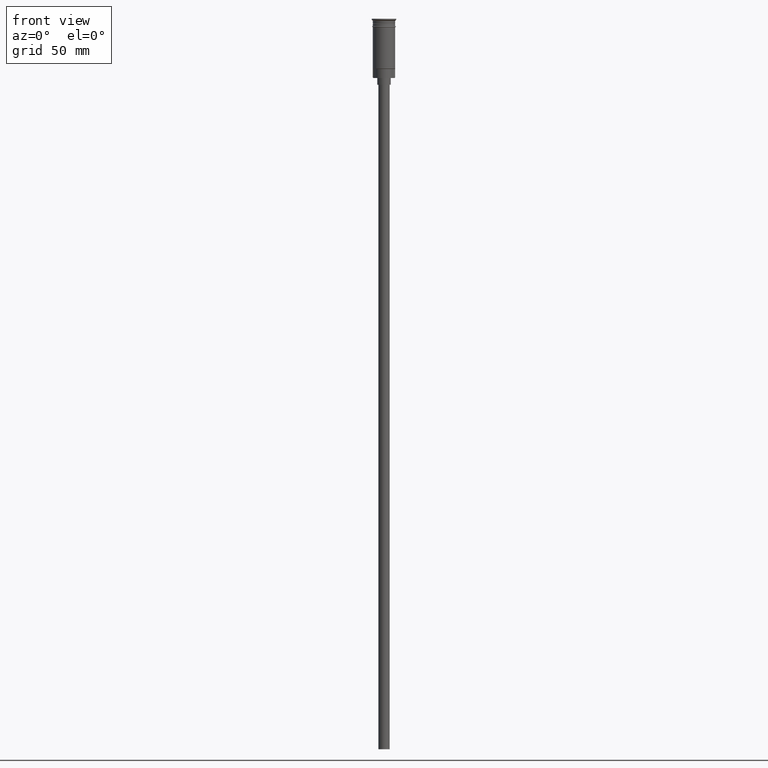
[diagram: clean part render]
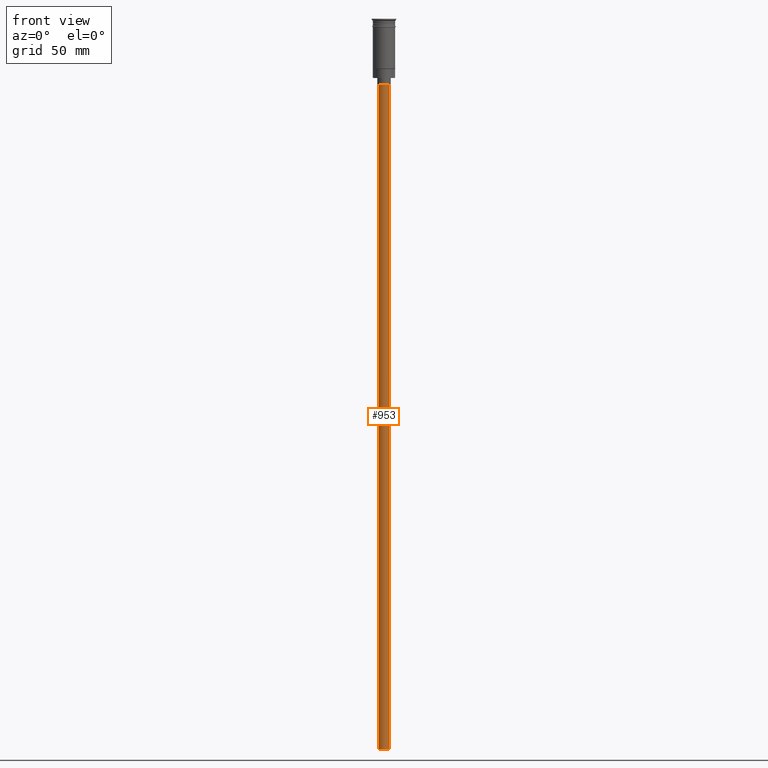
[diagram: same view with one face highlighted and labeled with its STEP entity id]
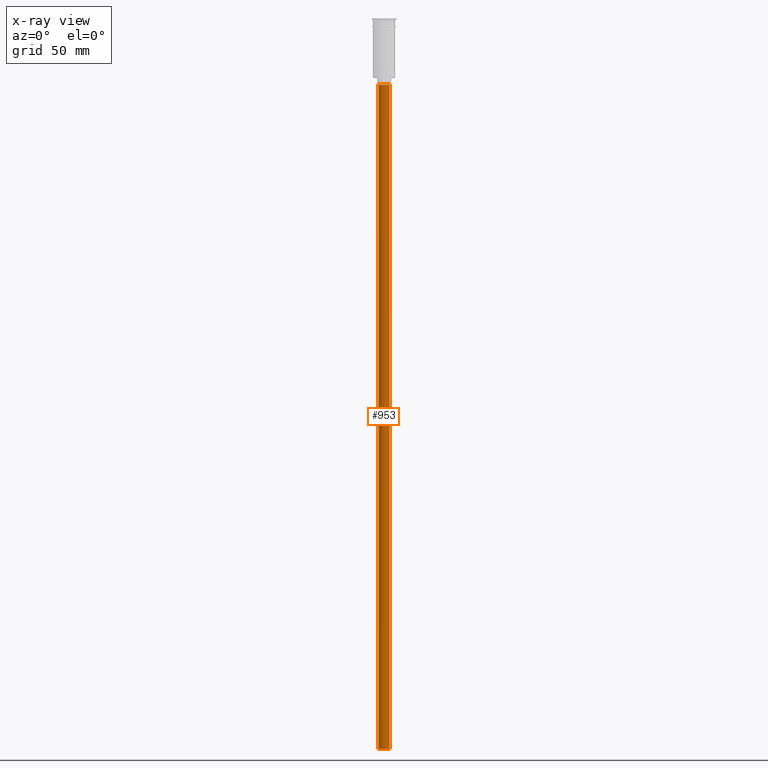
[diagram: x-ray of the same camera — body ghosted, the highlighted face saturated]
A machine part, front view. The second image highlights one B-rep face of the part: STEP entity #953.
The next image is the same camera in x-ray: the body ghosted, the highlighted face saturated — about 0% of this face is hidden behind the body in this view.
In plain terms, the highlighted cylindrical surface (edge-blend (fillet) strip) has radius 2.5 mm, axis along (-0, -0, 1).
Its self-contained STEP definition (entity closure, byte-faithful):
#14 = DIRECTION ( 'NONE',  ( 0.000000000000000000, 0.000000000000000000, -1.000000000000000000 ) ) ;
#23 = AXIS2_PLACEMENT_3D ( 'NONE', #310, #245, #622 ) ;
#36 = ORIENTED_EDGE ( 'NONE', *, *, #261, .T. ) ;
#86 = CARTESIAN_POINT ( 'NONE',  ( -2.500000000000000000, 3.061616997868383141E-16, -29.50000000000000000 ) ) ;
#106 = EDGE_CURVE ( 'NONE', #311, #1143, #264, .T. ) ;
#118 = DIRECTION ( 'NONE',  ( -0.000000000000000000, -0.000000000000000000, 1.000000000000000000 ) ) ;
#149 = DIRECTION ( 'NONE',  ( -0.000000000000000000, -0.000000000000000000, 1.000000000000000000 ) ) ;
#162 = ORIENTED_EDGE ( 'NONE', *, *, #429, .T. ) ;
#223 = CARTESIAN_POINT ( 'NONE',  ( 0.000000000000000000, 0.000000000000000000, -326.5000000000000000 ) ) ;
#228 = LINE ( 'NONE', #593, #574 ) ;
#245 = DIRECTION ( 'NONE',  ( 0.000000000000000000, 0.000000000000000000, -1.000000000000000000 ) ) ;
#261 = EDGE_CURVE ( 'NONE', #825, #1143, #1365, .T. ) ;
#264 = LINE ( 'NONE', #409, #1361 ) ;
#269 = CIRCLE ( 'NONE', #1077, 2.500000000000000000 ) ;
#310 = CARTESIAN_POINT ( 'NONE',  ( 0.000000000000000000, 0.000000000000000000, -29.50000000000000000 ) ) ;
#311 = VERTEX_POINT ( 'NONE', #877 ) ;
#321 = AXIS2_PLACEMENT_3D ( 'NONE', #223, #726, #1227 ) ;
#403 = VERTEX_POINT ( 'NONE', #1084 ) ;
#409 = CARTESIAN_POINT ( 'NONE',  ( -2.500000000000000000, 3.061616997868383141E-16, -326.5000000000000000 ) ) ;
#429 = EDGE_CURVE ( 'NONE', #403, #825, #228, .T. ) ;
#524 = DIRECTION ( 'NONE',  ( -1.000000000000000000, 0.000000000000000000, 0.000000000000000000 ) ) ;
#574 = VECTOR ( 'NONE', #118, 1000.000000000000000 ) ;
#593 = CARTESIAN_POINT ( 'NONE',  ( 2.500000000000000000, 0.000000000000000000, -326.5000000000000000 ) ) ;
#622 = DIRECTION ( 'NONE',  ( -1.000000000000000000, 0.000000000000000000, 0.000000000000000000 ) ) ;
#639 = EDGE_CURVE ( 'NONE', #403, #311, #269, .T. ) ;
#698 = ORIENTED_EDGE ( 'NONE', *, *, #639, .F. ) ;
#719 = FACE_OUTER_BOUND ( 'NONE', #1330, .T. ) ;
#726 = DIRECTION ( 'NONE',  ( -0.000000000000000000, -0.000000000000000000, 1.000000000000000000 ) ) ;
#778 = ORIENTED_EDGE ( 'NONE', *, *, #106, .F. ) ;
#825 = VERTEX_POINT ( 'NONE', #1410 ) ;
#877 = CARTESIAN_POINT ( 'NONE',  ( -2.500000000000000000, 3.061616997868383141E-16, -326.5000000000000000 ) ) ;
#953 = ADVANCED_FACE ( 'NONE', ( #719 ), #997, .T. ) ;
#997 = CYLINDRICAL_SURFACE ( 'NONE', #321, 2.500000000000000000 ) ;
#1077 = AXIS2_PLACEMENT_3D ( 'NONE', #1241, #14, #524 ) ;
#1084 = CARTESIAN_POINT ( 'NONE',  ( 2.500000000000000000, 0.000000000000000000, -326.5000000000000000 ) ) ;
#1143 = VERTEX_POINT ( 'NONE', #86 ) ;
#1227 = DIRECTION ( 'NONE',  ( 1.000000000000000000, 0.000000000000000000, 0.000000000000000000 ) ) ;
#1241 = CARTESIAN_POINT ( 'NONE',  ( 0.000000000000000000, 0.000000000000000000, -326.5000000000000000 ) ) ;
#1330 = EDGE_LOOP ( 'NONE', ( #778, #698, #162, #36 ) ) ;
#1361 = VECTOR ( 'NONE', #149, 1000.000000000000000 ) ;
#1365 = CIRCLE ( 'NONE', #23, 2.500000000000000000 ) ;
#1410 = CARTESIAN_POINT ( 'NONE',  ( 2.500000000000000000, 0.000000000000000000, -29.50000000000000000 ) ) ;